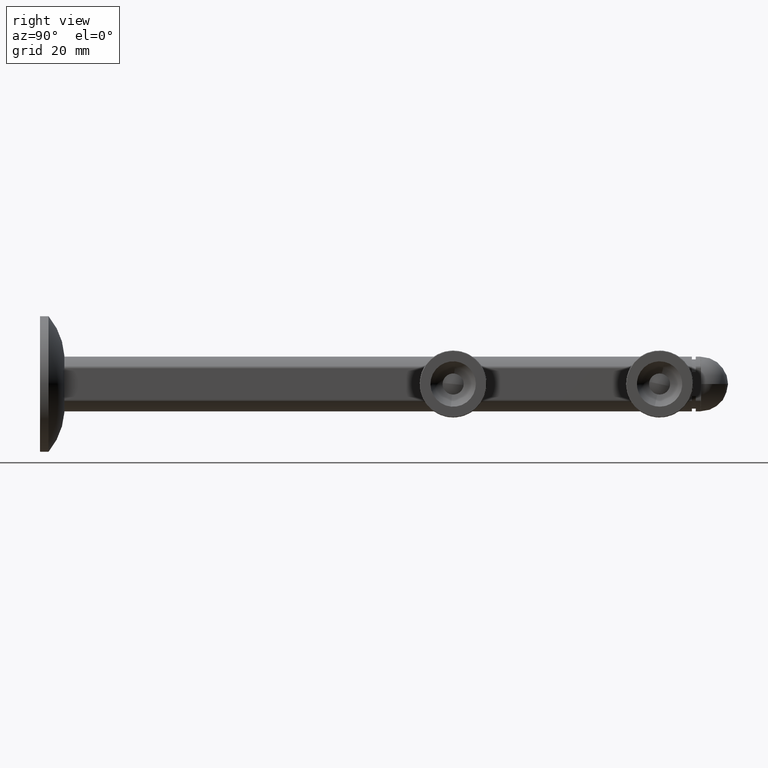
[diagram: clean part render]
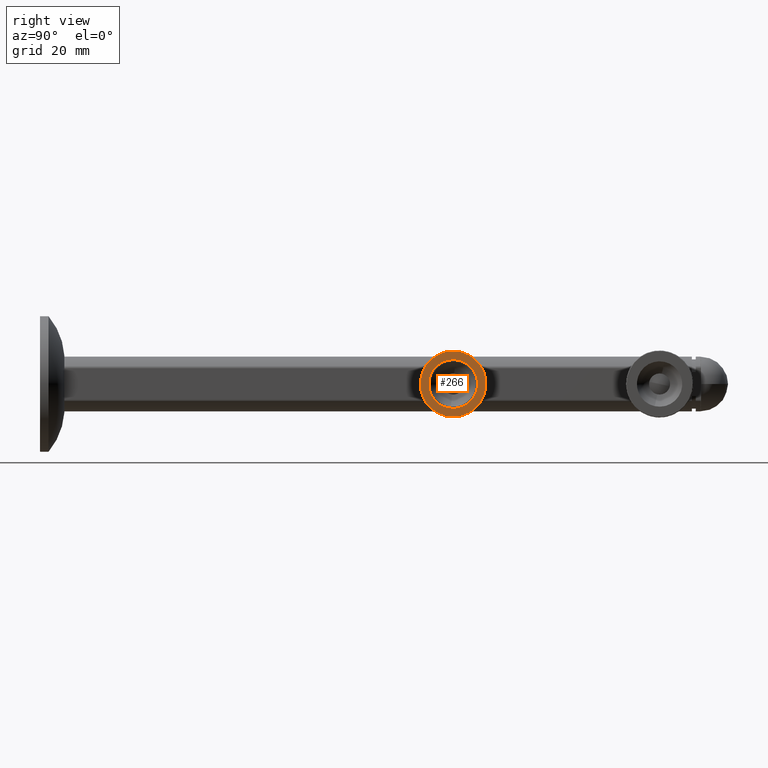
[diagram: same view with one face highlighted and labeled with its STEP entity id]
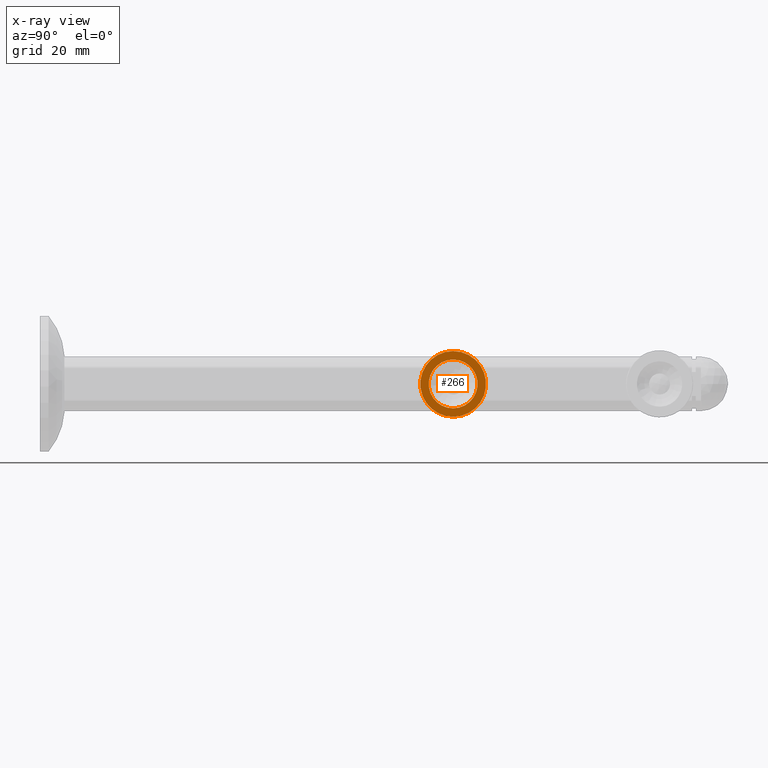
[diagram: x-ray of the same camera — body ghosted, the highlighted face saturated]
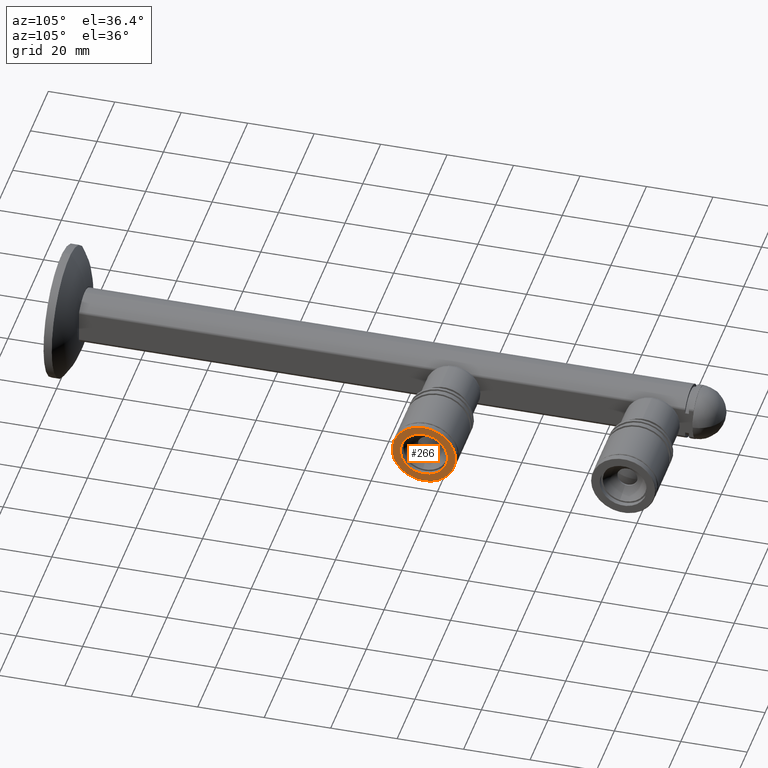
[diagram: same view with one face highlighted and labeled with its STEP entity id]
A machine part, right view. The second image highlights one B-rep face of the part: STEP entity #266.
The next image is the same camera in x-ray: the body ghosted, the highlighted face saturated — about 0% of this face is hidden behind the body in this view.
A second angle (auxiliary view) of the same face is appended — the face is thin or edge-on in the first view.
In plain terms, the highlighted planar face has unit normal (-1, 0, -0).
Its self-contained STEP definition (entity closure, byte-faithful):
#266 = ADVANCED_FACE ( 'NONE', ( #12870, #4572 ), #5422, .F. ) ;
#1173 = EDGE_CURVE ( 'NONE', #15264, #14984, #11023, .T. ) ;
#1479 = DIRECTION ( 'NONE',  ( -7.981960134060291135E-20, -1.000000000000000000, -0.000000000000000000 ) ) ;
#2370 = DIRECTION ( 'NONE',  ( 1.000000000000000000, 0.000000000000000000, 0.000000000000000000 ) ) ;
#2489 = CARTESIAN_POINT ( 'NONE',  ( -9.550000000000009592, 25.76934397916141961, 1.181784161177196507E-15 ) ) ;
#2812 = CARTESIAN_POINT ( 'NONE',  ( -5.327013619437526295E-15, 25.76934397916141961, 0.000000000000000000 ) ) ;
#3709 = AXIS2_PLACEMENT_3D ( 'NONE', #2812, #1479, #5874 ) ;
#4059 = AXIS2_PLACEMENT_3D ( 'NONE', #17266, #18665, #4071 ) ;
#4071 = DIRECTION ( 'NONE',  ( 1.000000000000000000, -7.981960134060291135E-20, 0.000000000000000000 ) ) ;
#4264 = CARTESIAN_POINT ( 'NONE',  ( -5.327013619437526295E-15, 25.76934397916141961, 0.000000000000000000 ) ) ;
#4572 = FACE_BOUND ( 'NONE', #13546, .T. ) ;
#5180 = CIRCLE ( 'NONE', #3709, 7.100000000000004974 ) ;
#5422 = PLANE ( 'NONE',  #4059 ) ;
#5511 = CARTESIAN_POINT ( 'NONE',  ( 7.099999999999999645, 25.76934397916141961, 0.000000000000000000 ) ) ;
#5706 = ORIENTED_EDGE ( 'NONE', *, *, #13929, .T. ) ;
#5874 = DIRECTION ( 'NONE',  ( 1.000000000000000000, 0.000000000000000000, 0.000000000000000000 ) ) ;
#6141 = AXIS2_PLACEMENT_3D ( 'NONE', #4264, #14582, #9939 ) ;
#6176 = VERTEX_POINT ( 'NONE', #12970 ) ;
#6222 = CARTESIAN_POINT ( 'NONE',  ( -5.327013619437525506E-15, 25.76934397916141961, 0.000000000000000000 ) ) ;
#6354 = DIRECTION ( 'NONE',  ( 1.000000000000000000, 0.000000000000000000, 0.000000000000000000 ) ) ;
#6368 = CIRCLE ( 'NONE', #7305, 9.550000000000004263 ) ;
#6792 = ORIENTED_EDGE ( 'NONE', *, *, #15304, .T. ) ;
#6910 = EDGE_CURVE ( 'NONE', #14984, #15264, #6368, .T. ) ;
#7305 = AXIS2_PLACEMENT_3D ( 'NONE', #11228, #12726, #2370 ) ;
#7367 = ORIENTED_EDGE ( 'NONE', *, *, #1173, .T. ) ;
#9176 = DIRECTION ( 'NONE',  ( 7.981960134060291135E-20, 1.000000000000000000, 0.000000000000000000 ) ) ;
#9182 = VERTEX_POINT ( 'NONE', #5511 ) ;
#9648 = EDGE_LOOP ( 'NONE', ( #15270, #7367 ) ) ;
#9939 = DIRECTION ( 'NONE',  ( 1.000000000000000000, 0.000000000000000000, 0.000000000000000000 ) ) ;
#10144 = CIRCLE ( 'NONE', #6141, 7.100000000000004974 ) ;
#11023 = CIRCLE ( 'NONE', #16146, 9.550000000000004263 ) ;
#11228 = CARTESIAN_POINT ( 'NONE',  ( -5.327013619437525506E-15, 25.76934397916141961, 0.000000000000000000 ) ) ;
#12726 = DIRECTION ( 'NONE',  ( 7.981960134060291135E-20, 1.000000000000000000, 0.000000000000000000 ) ) ;
#12870 = FACE_OUTER_BOUND ( 'NONE', #9648, .T. ) ;
#12970 = CARTESIAN_POINT ( 'NONE',  ( -7.100000000000010303, 25.76934397916141961, 8.694992273946213663E-16 ) ) ;
#13546 = EDGE_LOOP ( 'NONE', ( #5706, #6792 ) ) ;
#13929 = EDGE_CURVE ( 'NONE', #9182, #6176, #10144, .T. ) ;
#14582 = DIRECTION ( 'NONE',  ( -7.981960134060291135E-20, -1.000000000000000000, -0.000000000000000000 ) ) ;
#14984 = VERTEX_POINT ( 'NONE', #18557 ) ;
#15264 = VERTEX_POINT ( 'NONE', #2489 ) ;
#15270 = ORIENTED_EDGE ( 'NONE', *, *, #6910, .T. ) ;
#15304 = EDGE_CURVE ( 'NONE', #6176, #9182, #5180, .T. ) ;
#16146 = AXIS2_PLACEMENT_3D ( 'NONE', #6222, #9176, #6354 ) ;
#17266 = CARTESIAN_POINT ( 'NONE',  ( 5.367709678760564872E-38, 25.76934397916141961, 0.000000000000000000 ) ) ;
#18557 = CARTESIAN_POINT ( 'NONE',  ( 9.549999999999998934, 25.76934397916141961, 0.000000000000000000 ) ) ;
#18665 = DIRECTION ( 'NONE',  ( -7.981960134060291135E-20, -1.000000000000000000, 0.000000000000000000 ) ) ;